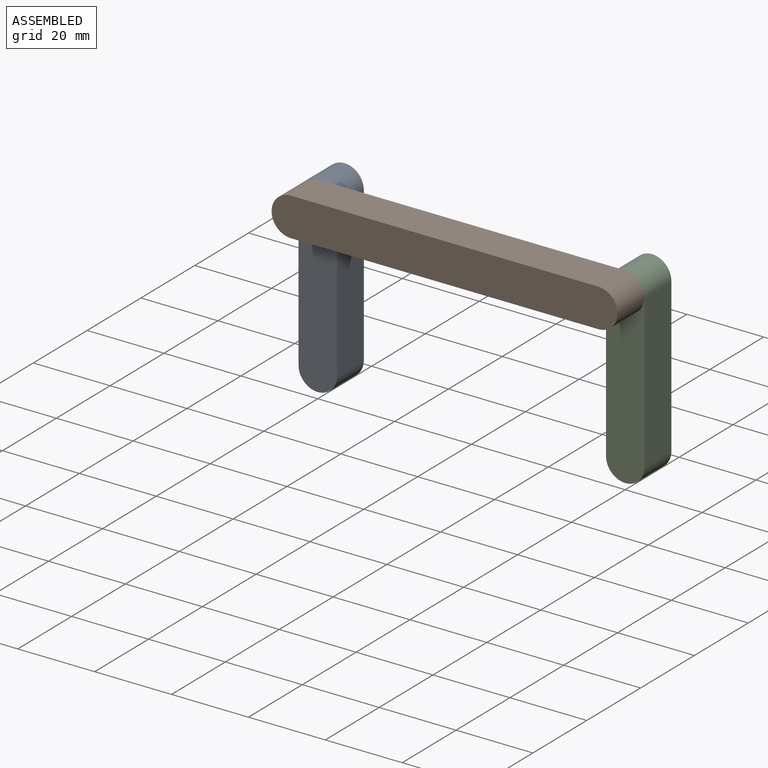
[diagram: assembled view]
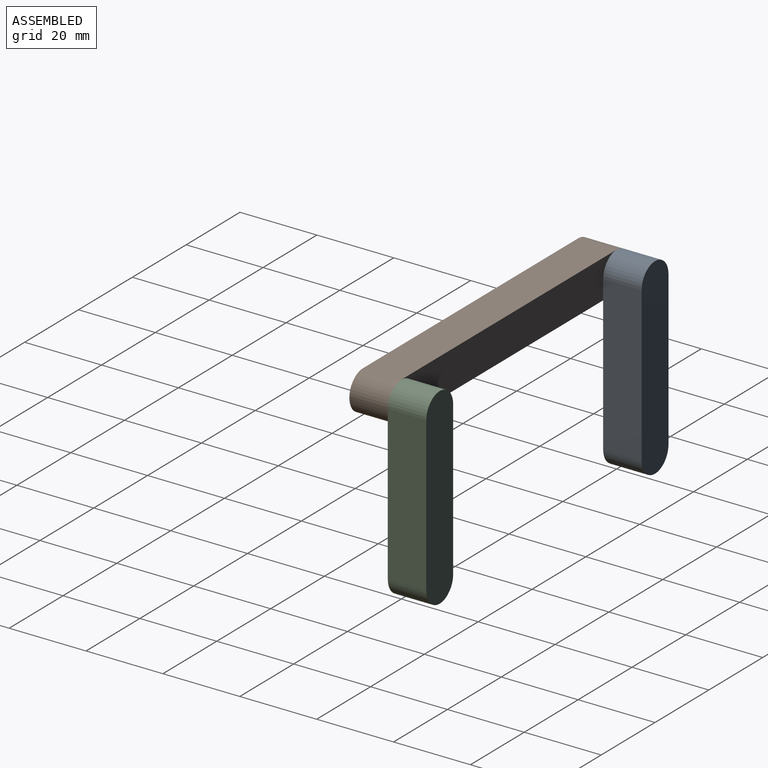
[diagram: assembled view, second angle]
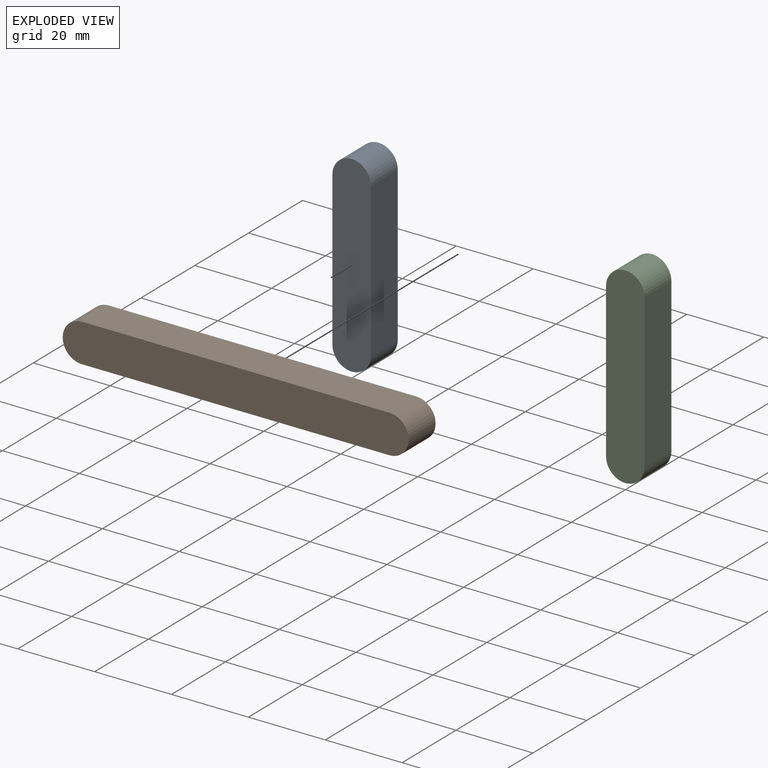
[diagram: exploded view]
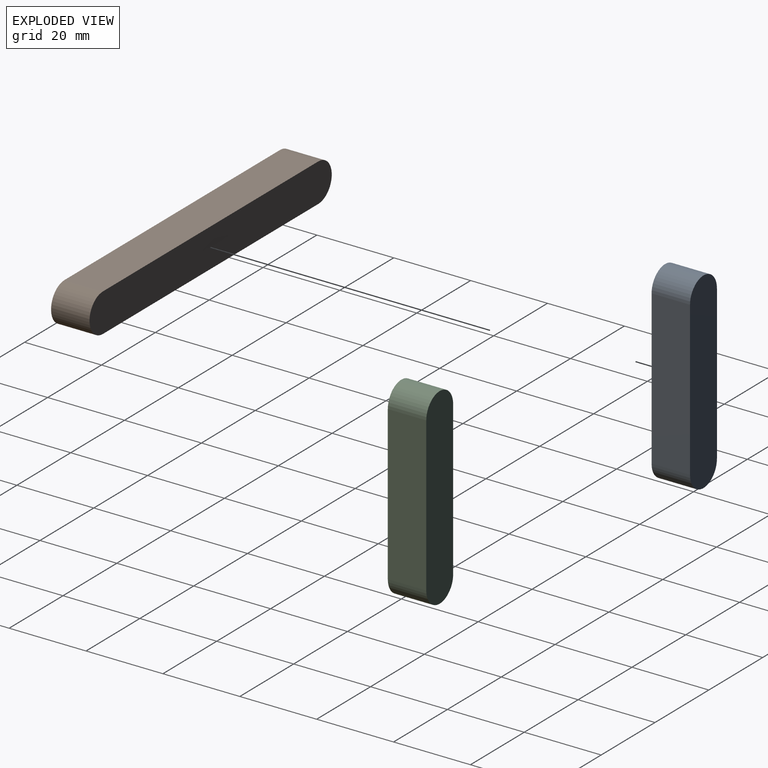
[diagram: exploded view, second angle]
ASSEMBLY  parts=3 mates=4
PART A: 6 faces, bbox 50x10x10 mm
  f0: plane 40x10mm, normal (0,0,1), area 400mm2, adj f1,f3,f4,f5
  f1: cylinder r=5mm len=10mm, axis (0,-1,0), area 157.1mm2, adj f0,f2,f4,f5
  f2: plane 40x10mm, normal (0,0,-1), area 400mm2, adj f1,f3,f4,f5
  f3: cylinder r=5mm len=10mm, axis (0,-1,0), area 157.1mm2, adj f0,f2,f4,f5
  f4: plane 50x10mm, normal (0,1,0), area 478.5mm2, adj f0,f1,f2,f3
  f5: plane 50x10mm, normal (0,-1,0), area 478.5mm2, adj f0,f1,f2,f3
PART B: 6 faces, bbox 90x10x10 mm
  f0: plane 80x10mm, normal (0,0,1), area 800mm2, adj f1,f3,f4,f5
  f1: cylinder r=5mm len=10mm, axis (0,-1,0), area 157.1mm2, adj f0,f2,f4,f5
  f2: plane 80x10mm, normal (0,0,-1), area 800mm2, adj f1,f3,f4,f5
  f3: cylinder r=5mm len=10mm, axis (0,-1,0), area 157.1mm2, adj f0,f2,f4,f5
  f4: plane 90x10mm, normal (0,1,0), area 878.5mm2, adj f0,f1,f2,f3
  f5: plane 90x10mm, normal (0,-1,0), area 878.5mm2, adj f0,f1,f2,f3
PART C: 6 faces, bbox 50x10x10 mm
  f0: plane 40x10mm, normal (0,0,1), area 400mm2, adj f1,f3,f4,f5
  f1: cylinder r=5mm len=10mm, axis (0,1,0), area 157.1mm2, adj f0,f2,f4,f5
  f2: plane 40x10mm, normal (0,0,-1), area 400mm2, adj f1,f3,f4,f5
  f3: cylinder r=5mm len=10mm, axis (0,1,0), area 157.1mm2, adj f0,f2,f4,f5
  f4: plane 50x10mm, normal (0,-1,0), area 478.5mm2, adj f0,f1,f2,f3
  f5: plane 50x10mm, normal (0,1,0), area 478.5mm2, adj f0,f1,f2,f3
PLACE A rot(axis=(0,-1,0),90deg) t=(0,0,0)mm
PLACE B t=(0,-10,40)mm
PLACE C rot(axis=(0.71,0,0.71),180deg) t=(80,0,0)mm
MATE revolute A.f3 <-> B.f1  axis (0,-1,0) through (0,0,40)mm
MATE planar A.f3 <-> B.f1  axis (0,-1,0) through (0,0,40)mm
MATE planar B.f3 <-> C.f3  axis (0,1,0) through (80,0,40)mm
MATE revolute B.f3 <-> C.f3  axis (0,1,0) through (80,0,40)mm
